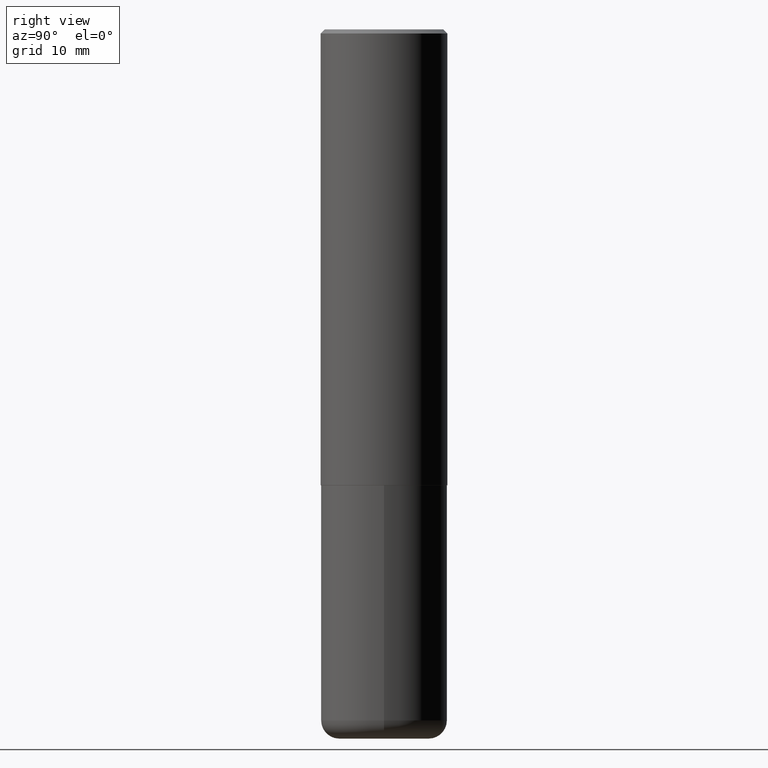
[diagram: clean part render]
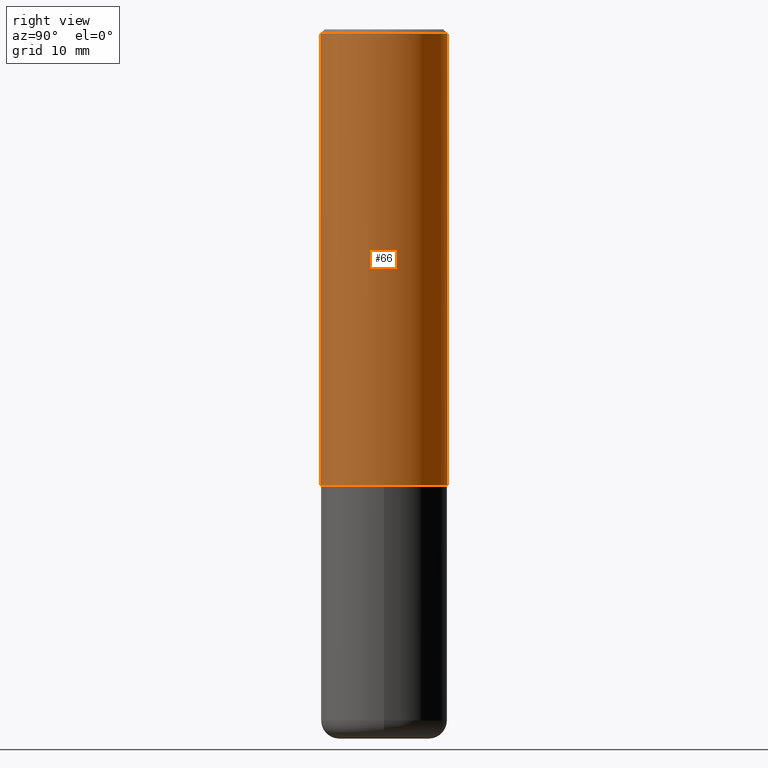
[diagram: same view with one face highlighted and labeled with its STEP entity id]
A machine part, right view. The second image highlights one B-rep face of the part: STEP entity #66.
In plain terms, the highlighted cylindrical surface (partial cylindrical patch) has radius 7.9375 mm, axis along (-0, 0, 1).
Its self-contained STEP definition (entity closure, byte-faithful):
#21 = VECTOR ( 'NONE', #381, 39.37007874015748143 ) ;
#24 = VECTOR ( 'NONE', #310, 39.37007874015748143 ) ;
#37 = CARTESIAN_POINT ( 'NONE',  ( -2.143905624303602824E-15, -0.3125000000000000555, -0.01999999999999897693 ) ) ;
#59 = ORIENTED_EDGE ( 'NONE', *, *, #160, .T. ) ;
#66 = ADVANCED_FACE ( 'NONE', ( #265 ), #68, .T. ) ;
#68 = CYLINDRICAL_SURFACE ( 'NONE', #324, 0.3125000000000001665 ) ;
#95 = CIRCLE ( 'NONE', #400, 0.3125000000000002776 ) ;
#101 = DIRECTION ( 'NONE',  ( -2.446193484042825510E-29, 3.490443558904832811E-15, 1.000000000000000000 ) ) ;
#111 = DIRECTION ( 'NONE',  ( -2.446193484042825510E-29, 3.490443558904832811E-15, 1.000000000000000000 ) ) ;
#119 = CARTESIAN_POINT ( 'NONE',  ( -2.182175836776959136E-15, -0.3125000000000001665, 1.090763612157760722E-15 ) ) ;
#136 = VERTEX_POINT ( 'NONE', #37 ) ;
#142 = ORIENTED_EDGE ( 'NONE', *, *, #201, .T. ) ;
#145 = DIRECTION ( 'NONE',  ( -6.982962677686265133E-15, -1.000000000000000000, 3.496765431890256920E-15 ) ) ;
#160 = EDGE_CURVE ( 'NONE', #319, #370, #95, .T. ) ;
#167 = AXIS2_PLACEMENT_3D ( 'NONE', #178, #307, #145 ) ;
#178 = CARTESIAN_POINT ( 'NONE',  ( 4.892386968085667136E-31, -6.980887117809689435E-17, -0.02000000000000006981 ) ) ;
#189 = CARTESIAN_POINT ( 'NONE',  ( -2.182175836776905099E-15, -0.3125000000000081601, -2.248999999999998334 ) ) ;
#198 = CARTESIAN_POINT ( 'NONE',  ( 0.000000000000000000, 0.000000000000000000, 0.000000000000000000 ) ) ;
#201 = EDGE_CURVE ( 'NONE', #370, #205, #314, .T. ) ;
#205 = VERTEX_POINT ( 'NONE', #211 ) ;
#211 = CARTESIAN_POINT ( 'NONE',  ( 2.182175836776958741E-15, 0.3124999999999999445, -0.02000000000000116268 ) ) ;
#218 = LINE ( 'NONE', #119, #21 ) ;
#241 = CARTESIAN_POINT ( 'NONE',  ( 2.220446049250313475E-15, 0.3125000000000001665, -1.090763612157760722E-15 ) ) ;
#243 = EDGE_CURVE ( 'NONE', #136, #205, #352, .T. ) ;
#245 = ORIENTED_EDGE ( 'NONE', *, *, #243, .F. ) ;
#265 = FACE_OUTER_BOUND ( 'NONE', #309, .T. ) ;
#278 = CARTESIAN_POINT ( 'NONE',  ( 5.501489145612312805E-29, -7.850007563976967685E-15, -2.248999999999999222 ) ) ;
#279 = EDGE_CURVE ( 'NONE', #319, #136, #218, .T. ) ;
#307 = DIRECTION ( 'NONE',  ( -2.446193484042825510E-29, 3.490443558904832811E-15, 1.000000000000000000 ) ) ;
#309 = EDGE_LOOP ( 'NONE', ( #59, #142, #245, #367 ) ) ;
#310 = DIRECTION ( 'NONE',  ( -2.446193484042825510E-29, 3.490443558904832811E-15, 1.000000000000000000 ) ) ;
#314 = LINE ( 'NONE', #241, #24 ) ;
#315 = CARTESIAN_POINT ( 'NONE',  ( 2.220446049250341874E-15, 0.3124999999999924505, -2.249000000000000554 ) ) ;
#319 = VERTEX_POINT ( 'NONE', #189 ) ;
#324 = AXIS2_PLACEMENT_3D ( 'NONE', #198, #101, #332 ) ;
#332 = DIRECTION ( 'NONE',  ( -6.982962677686265133E-15, -1.000000000000000000, 3.490443558904832416E-15 ) ) ;
#352 = CIRCLE ( 'NONE', #167, 0.3125000000000000000 ) ;
#367 = ORIENTED_EDGE ( 'NONE', *, *, #279, .F. ) ;
#370 = VERTEX_POINT ( 'NONE', #315 ) ;
#381 = DIRECTION ( 'NONE',  ( -2.446193484042825510E-29, 3.490443558904832811E-15, 1.000000000000000000 ) ) ;
#400 = AXIS2_PLACEMENT_3D ( 'NONE', #278, #111, #403 ) ;
#403 = DIRECTION ( 'NONE',  ( -6.982962677686265922E-15, -1.000000000000000000, 3.496765431890253764E-15 ) ) ;